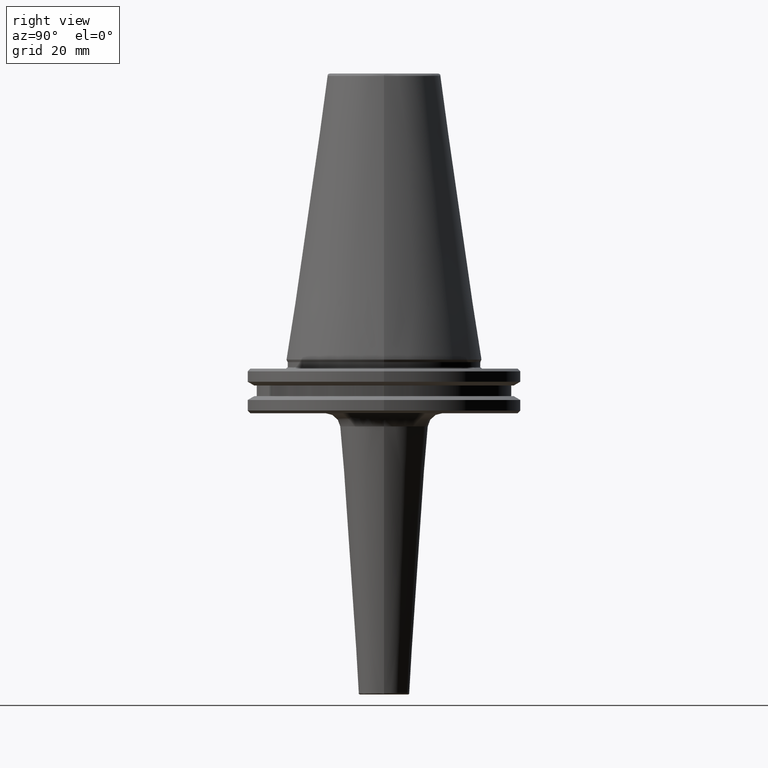
[diagram: clean part render]
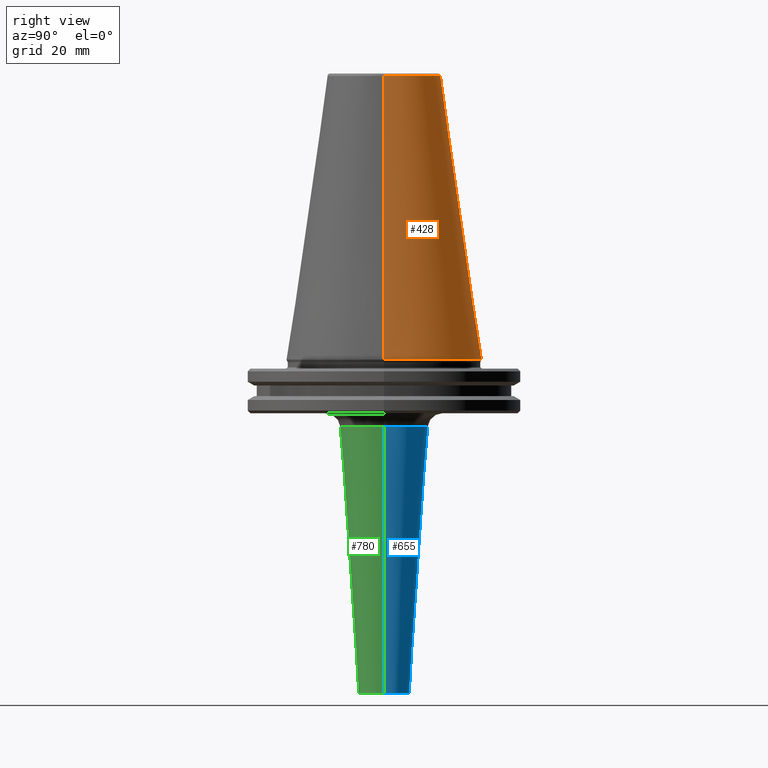
[diagram: same view with three faces highlighted in distinct colors, each labeled with its STEP entity id]
A machine part, right view with three faces highlighted in distinct colors.
Their STEP definitions:

[orange] entity #428 — the highlighted conical surface has half-angle 8.297 deg.
#270 = CIRCLE ( 'NONE', #1155, 34.92499999999999700 ) ;
#350 = VERTEX_POINT ( 'NONE', #1285 ) ;
#407 = VECTOR ( 'NONE', #607, 1000.000000000000000 ) ;
#419 = VERTEX_POINT ( 'NONE', #640 ) ;
#428 = ADVANCED_FACE ( 'NONE', ( #925 ), #835, .T. ) ;
#458 = VERTEX_POINT ( 'NONE', #632 ) ;
#607 = DIRECTION ( 'NONE',  ( -0.1443082272673069400, 0.0000000000000000000, -0.9895327864921743500 ) ) ;
#613 = CARTESIAN_POINT ( 'NONE',  ( -34.92499999999999700, 0.0000000000000000000, -1.387778780781445700E-014 ) ) ;
#632 = CARTESIAN_POINT ( 'NONE',  ( 34.92500000000000400, 0.0000000000000000000, 0.0000000000000000000 ) ) ;
#638 = DIRECTION ( 'NONE',  ( 0.0000000000000000000, 0.0000000000000000000, -1.000000000000000000 ) ) ;
#640 = CARTESIAN_POINT ( 'NONE',  ( -34.92500000000000400, 4.277078946022131700E-015, 0.0000000000000000000 ) ) ;
#642 = CARTESIAN_POINT ( 'NONE',  ( 0.0000000000000000000, 0.0000000000000000000, -1.387778780781445700E-014 ) ) ;
#673 = LINE ( 'NONE', #938, #910 ) ;
#697 = DIRECTION ( 'NONE',  ( -1.000000000000000000, 0.0000000000000000000, 0.0000000000000000000 ) ) ;
#700 = DIRECTION ( 'NONE',  ( -1.000000000000000000, 0.0000000000000000000, 0.0000000000000000000 ) ) ;
#704 = DIRECTION ( 'NONE',  ( -0.0000000000000000000, -0.0000000000000000000, 1.000000000000000000 ) ) ;
#711 = CARTESIAN_POINT ( 'NONE',  ( 0.0000000000000000000, 0.0000000000000000000, 0.0000000000000000000 ) ) ;
#799 = CIRCLE ( 'NONE', #979, 20.21110778703758000 ) ;
#833 = CARTESIAN_POINT ( 'NONE',  ( -20.21110778703758000, 0.0000000000000000000, 100.8943082272673000 ) ) ;
#835 = CONICAL_SURFACE ( 'NONE', #1399, 34.92499999999999700, 0.1448138465474189400 ) ;
#875 = EDGE_CURVE ( 'NONE', #1148, #350, #799, .T. ) ;
#892 = DIRECTION ( 'NONE',  ( 0.1443082272673069400, 1.767266086135362400E-017, -0.9895327864921743500 ) ) ;
#910 = VECTOR ( 'NONE', #892, 1000.000000000000000 ) ;
#916 = EDGE_CURVE ( 'NONE', #350, #458, #673, .T. ) ;
#925 = FACE_OUTER_BOUND ( 'NONE', #1420, .T. ) ;
#938 = CARTESIAN_POINT ( 'NONE',  ( 34.92499999999999700, 4.277078946022130900E-015, -1.387778780781445700E-014 ) ) ;
#970 = EDGE_CURVE ( 'NONE', #458, #419, #270, .T. ) ;
#979 = AXIS2_PLACEMENT_3D ( 'NONE', #1428, #1402, #1396 ) ;
#994 = EDGE_CURVE ( 'NONE', #1148, #419, #1497, .T. ) ;
#1108 = ORIENTED_EDGE ( 'NONE', *, *, #875, .T. ) ;
#1148 = VERTEX_POINT ( 'NONE', #833 ) ;
#1155 = AXIS2_PLACEMENT_3D ( 'NONE', #711, #704, #700 ) ;
#1232 = ORIENTED_EDGE ( 'NONE', *, *, #970, .T. ) ;
#1250 = ORIENTED_EDGE ( 'NONE', *, *, #916, .T. ) ;
#1253 = ORIENTED_EDGE ( 'NONE', *, *, #994, .F. ) ;
#1285 = CARTESIAN_POINT ( 'NONE',  ( 20.21110778703758000, 3.376112895941951000E-015, 100.8943082272673000 ) ) ;
#1396 = DIRECTION ( 'NONE',  ( -1.000000000000000000, 0.0000000000000000000, 0.0000000000000000000 ) ) ;
#1399 = AXIS2_PLACEMENT_3D ( 'NONE', #642, #638, #697 ) ;
#1402 = DIRECTION ( 'NONE',  ( 0.0000000000000000000, 0.0000000000000000000, -1.000000000000000000 ) ) ;
#1420 = EDGE_LOOP ( 'NONE', ( #1108, #1250, #1232, #1253 ) ) ;
#1428 = CARTESIAN_POINT ( 'NONE',  ( 0.0000000000000000000, 0.0000000000000000000, 100.8943082272673000 ) ) ;
#1497 = LINE ( 'NONE', #613, #407 ) ;

[blue] entity #655 — the highlighted conical surface has half-angle 4.004 deg.
#27 = VERTEX_POINT ( 'NONE', #644 ) ;
#281 = CARTESIAN_POINT ( 'NONE',  ( 0.0000000000000000000, 0.0000000000000000000, -23.75085436150045500 ) ) ;
#291 = DIRECTION ( 'NONE',  ( 0.0000000000000000000, 0.0000000000000000000, 1.000000000000000000 ) ) ;
#295 = DIRECTION ( 'NONE',  ( 1.000000000000000000, 0.0000000000000000000, 0.0000000000000000000 ) ) ;
#355 = CIRCLE ( 'NONE', #1016, 15.67444019469497000 ) ;
#441 = CONICAL_SURFACE ( 'NONE', #1349, 15.67444019469497000, 0.06988600163464252200 ) ;
#499 = DIRECTION ( 'NONE',  ( 0.06982912769991390900, 0.0000000000000000000, 0.9975589671416268400 ) ) ;
#505 = CARTESIAN_POINT ( 'NONE',  ( 15.67444019469497000, 0.0000000000000000000, -23.75085436150045500 ) ) ;
#506 = FACE_OUTER_BOUND ( 'NONE', #1456, .T. ) ;
#519 = EDGE_CURVE ( 'NONE', #906, #1181, #1512, .T. ) ;
#528 = EDGE_CURVE ( 'NONE', #1181, #27, #802, .T. ) ;
#544 = EDGE_CURVE ( 'NONE', #906, #1339, #1001, .T. ) ;
#549 = DIRECTION ( 'NONE',  ( 1.000000000000000000, 0.0000000000000000000, 0.0000000000000000000 ) ) ;
#552 = DIRECTION ( 'NONE',  ( 0.0000000000000000000, 0.0000000000000000000, 1.000000000000000000 ) ) ;
#554 = CARTESIAN_POINT ( 'NONE',  ( 0.0000000000000000000, 0.0000000000000000000, -118.6349145638499700 ) ) ;
#555 = CARTESIAN_POINT ( 'NONE',  ( -15.67444019469497000, 1.919565301285981100E-015, -23.75085436150045500 ) ) ;
#565 = DIRECTION ( 'NONE',  ( -0.06982912769991390900, 8.551601772495134800E-018, 0.9975589671416268400 ) ) ;
#566 = CARTESIAN_POINT ( 'NONE',  ( 15.67444019469497000, 0.0000000000000000000, -23.75085436150044400 ) ) ;
#644 = CARTESIAN_POINT ( 'NONE',  ( -15.67444019469497000, 1.919565301285981100E-015, -23.75085436150044400 ) ) ;
#655 = ADVANCED_FACE ( 'NONE', ( #506 ), #441, .T. ) ;
#656 = DIRECTION ( 'NONE',  ( -1.000000000000000000, 0.0000000000000000000, 0.0000000000000000000 ) ) ;
#659 = DIRECTION ( 'NONE',  ( 0.0000000000000000000, 0.0000000000000000000, -1.000000000000000000 ) ) ;
#666 = CARTESIAN_POINT ( 'NONE',  ( 0.0000000000000000000, 0.0000000000000000000, -23.75085436150044400 ) ) ;
#774 = ORIENTED_EDGE ( 'NONE', *, *, #519, .T. ) ;
#798 = ORIENTED_EDGE ( 'NONE', *, *, #528, .T. ) ;
#802 = LINE ( 'NONE', #555, #888 ) ;
#812 = CARTESIAN_POINT ( 'NONE',  ( -9.032555980530501600, 1.512867189126788700E-015, -118.6349145638499700 ) ) ;
#817 = ORIENTED_EDGE ( 'NONE', *, *, #987, .T. ) ;
#823 = VECTOR ( 'NONE', #499, 999.9999999999998900 ) ;
#831 = ORIENTED_EDGE ( 'NONE', *, *, #544, .F. ) ;
#888 = VECTOR ( 'NONE', #565, 999.9999999999998900 ) ;
#906 = VERTEX_POINT ( 'NONE', #933 ) ;
#933 = CARTESIAN_POINT ( 'NONE',  ( 9.032555980530501600, 0.0000000000000000000, -118.6349145638499700 ) ) ;
#987 = EDGE_CURVE ( 'NONE', #27, #1339, #355, .T. ) ;
#1001 = LINE ( 'NONE', #505, #823 ) ;
#1016 = AXIS2_PLACEMENT_3D ( 'NONE', #666, #659, #656 ) ;
#1181 = VERTEX_POINT ( 'NONE', #812 ) ;
#1274 = AXIS2_PLACEMENT_3D ( 'NONE', #554, #552, #549 ) ;
#1339 = VERTEX_POINT ( 'NONE', #566 ) ;
#1349 = AXIS2_PLACEMENT_3D ( 'NONE', #281, #291, #295 ) ;
#1456 = EDGE_LOOP ( 'NONE', ( #774, #798, #817, #831 ) ) ;
#1512 = CIRCLE ( 'NONE', #1274, 9.032555980530501600 ) ;

[green] entity #780 — the highlighted conical surface has half-angle 4.004 deg.
#27 = VERTEX_POINT ( 'NONE', #644 ) ;
#34 = CONICAL_SURFACE ( 'NONE', #766, 15.67444019469497000, 0.06988600163464252200 ) ;
#38 = DIRECTION ( 'NONE',  ( 0.0000000000000000000, 0.0000000000000000000, 1.000000000000000000 ) ) ;
#44 = CARTESIAN_POINT ( 'NONE',  ( 0.0000000000000000000, 0.0000000000000000000, -23.75085436150045500 ) ) ;
#49 = DIRECTION ( 'NONE',  ( 1.000000000000000000, 0.0000000000000000000, 0.0000000000000000000 ) ) ;
#93 = FACE_OUTER_BOUND ( 'NONE', #557, .T. ) ;
#167 = DIRECTION ( 'NONE',  ( -1.000000000000000000, 0.0000000000000000000, 0.0000000000000000000 ) ) ;
#171 = DIRECTION ( 'NONE',  ( 0.0000000000000000000, 0.0000000000000000000, -1.000000000000000000 ) ) ;
#177 = CARTESIAN_POINT ( 'NONE',  ( 0.0000000000000000000, 0.0000000000000000000, -23.75085436150044400 ) ) ;
#185 = DIRECTION ( 'NONE',  ( 1.000000000000000000, 0.0000000000000000000, 0.0000000000000000000 ) ) ;
#189 = ORIENTED_EDGE ( 'NONE', *, *, #698, .T. ) ;
#190 = DIRECTION ( 'NONE',  ( 0.0000000000000000000, 0.0000000000000000000, 1.000000000000000000 ) ) ;
#193 = CARTESIAN_POINT ( 'NONE',  ( 0.0000000000000000000, 0.0000000000000000000, -118.6349145638499700 ) ) ;
#319 = ORIENTED_EDGE ( 'NONE', *, *, #528, .F. ) ;
#331 = ORIENTED_EDGE ( 'NONE', *, *, #544, .T. ) ;
#339 = AXIS2_PLACEMENT_3D ( 'NONE', #177, #171, #167 ) ;
#481 = CIRCLE ( 'NONE', #1163, 9.032555980530501600 ) ;
#499 = DIRECTION ( 'NONE',  ( 0.06982912769991390900, 0.0000000000000000000, 0.9975589671416268400 ) ) ;
#505 = CARTESIAN_POINT ( 'NONE',  ( 15.67444019469497000, 0.0000000000000000000, -23.75085436150045500 ) ) ;
#528 = EDGE_CURVE ( 'NONE', #1181, #27, #802, .T. ) ;
#544 = EDGE_CURVE ( 'NONE', #906, #1339, #1001, .T. ) ;
#555 = CARTESIAN_POINT ( 'NONE',  ( -15.67444019469497000, 1.919565301285981100E-015, -23.75085436150045500 ) ) ;
#557 = EDGE_LOOP ( 'NONE', ( #319, #189, #331, #611 ) ) ;
#565 = DIRECTION ( 'NONE',  ( -0.06982912769991390900, 8.551601772495134800E-018, 0.9975589671416268400 ) ) ;
#566 = CARTESIAN_POINT ( 'NONE',  ( 15.67444019469497000, 0.0000000000000000000, -23.75085436150044400 ) ) ;
#611 = ORIENTED_EDGE ( 'NONE', *, *, #1470, .T. ) ;
#644 = CARTESIAN_POINT ( 'NONE',  ( -15.67444019469497000, 1.919565301285981100E-015, -23.75085436150044400 ) ) ;
#698 = EDGE_CURVE ( 'NONE', #1181, #906, #481, .T. ) ;
#766 = AXIS2_PLACEMENT_3D ( 'NONE', #44, #38, #49 ) ;
#780 = ADVANCED_FACE ( 'NONE', ( #93 ), #34, .T. ) ;
#802 = LINE ( 'NONE', #555, #888 ) ;
#812 = CARTESIAN_POINT ( 'NONE',  ( -9.032555980530501600, 1.512867189126788700E-015, -118.6349145638499700 ) ) ;
#823 = VECTOR ( 'NONE', #499, 999.9999999999998900 ) ;
#888 = VECTOR ( 'NONE', #565, 999.9999999999998900 ) ;
#906 = VERTEX_POINT ( 'NONE', #933 ) ;
#933 = CARTESIAN_POINT ( 'NONE',  ( 9.032555980530501600, 0.0000000000000000000, -118.6349145638499700 ) ) ;
#1001 = LINE ( 'NONE', #505, #823 ) ;
#1163 = AXIS2_PLACEMENT_3D ( 'NONE', #193, #190, #185 ) ;
#1181 = VERTEX_POINT ( 'NONE', #812 ) ;
#1209 = CIRCLE ( 'NONE', #339, 15.67444019469497000 ) ;
#1339 = VERTEX_POINT ( 'NONE', #566 ) ;
#1470 = EDGE_CURVE ( 'NONE', #1339, #27, #1209, .T. ) ;